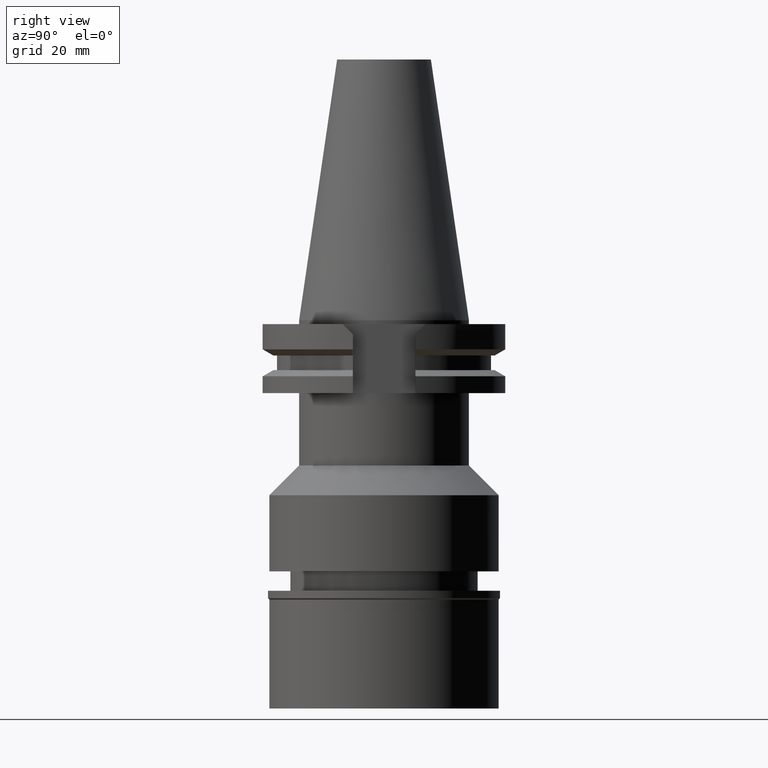
[diagram: clean part render]
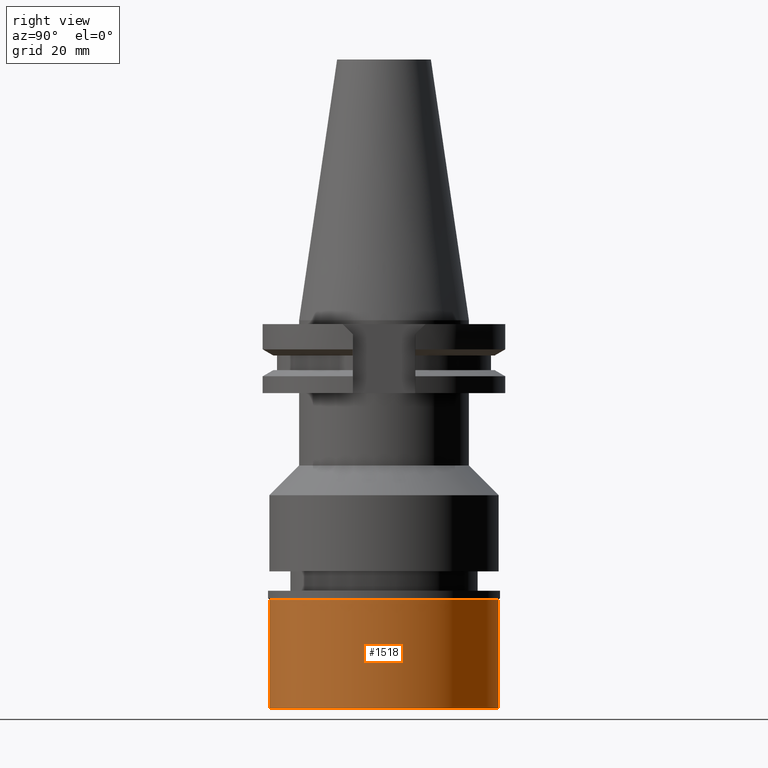
[diagram: same view with one face highlighted and labeled with its STEP entity id]
A machine part, right view. The second image highlights one B-rep face of the part: STEP entity #1518.
In plain terms, the highlighted cylindrical surface (partial cylindrical patch) has radius 30 mm, axis along (0, 0, -1).
Its self-contained STEP definition (entity closure, byte-faithful):
#124 = LINE ( 'NONE', #1585, #1749 ) ;
#186 = LINE ( 'NONE', #2381, #3070 ) ;
#250 = CARTESIAN_POINT ( 'NONE',  ( 0.0000000000000000000, 30.00000000000000000, -30.80000000000000071 ) ) ;
#340 = CARTESIAN_POINT ( 'NONE',  ( 0.0000000000000000000, 0.0000000000000000000, -30.80000000000000071 ) ) ;
#380 = EDGE_LOOP ( 'NONE', ( #2921, #2206, #2683, #2079 ) ) ;
#469 = DIRECTION ( 'NONE',  ( 0.0000000000000000000, 0.0000000000000000000, -1.000000000000000000 ) ) ;
#576 = DIRECTION ( 'NONE',  ( 0.0000000000000000000, -1.000000000000000000, 0.0000000000000000000 ) ) ;
#610 = CARTESIAN_POINT ( 'NONE',  ( 0.0000000000000000000, -30.00000000000000000, -30.80000000000000071 ) ) ;
#649 = EDGE_CURVE ( 'NONE', #1550, #2421, #186, .T. ) ;
#768 = EDGE_CURVE ( 'NONE', #2421, #2187, #1321, .T. ) ;
#779 = DIRECTION ( 'NONE',  ( 0.0000000000000000000, 0.0000000000000000000, 1.000000000000000000 ) ) ;
#915 = DIRECTION ( 'NONE',  ( 0.0000000000000000000, -1.000000000000000000, 0.0000000000000000000 ) ) ;
#1127 = CARTESIAN_POINT ( 'NONE',  ( 0.0000000000000000000, 0.0000000000000000000, -2.299999999999999822 ) ) ;
#1155 = CYLINDRICAL_SURFACE ( 'NONE', #3029, 30.00000000000000000 ) ;
#1321 = CIRCLE ( 'NONE', #3128, 30.00000000000000000 ) ;
#1406 = EDGE_CURVE ( 'NONE', #2059, #1550, #2509, .T. ) ;
#1518 = ADVANCED_FACE ( 'NONE', ( #2346 ), #1155, .T. ) ;
#1550 = VERTEX_POINT ( 'NONE', #2799 ) ;
#1585 = CARTESIAN_POINT ( 'NONE',  ( 0.0000000000000000000, 30.00000000000000000, -2.299999999999999822 ) ) ;
#1749 = VECTOR ( 'NONE', #2598, 1000.000000000000000 ) ;
#1838 = DIRECTION ( 'NONE',  ( 0.0000000000000000000, 0.0000000000000000000, -1.000000000000000000 ) ) ;
#1839 = AXIS2_PLACEMENT_3D ( 'NONE', #1127, #1838, #2075 ) ;
#1860 = CARTESIAN_POINT ( 'NONE',  ( 0.0000000000000000000, 0.0000000000000000000, 0.0000000000000000000 ) ) ;
#2059 = VERTEX_POINT ( 'NONE', #2430 ) ;
#2075 = DIRECTION ( 'NONE',  ( 0.0000000000000000000, 1.000000000000000000, 0.0000000000000000000 ) ) ;
#2079 = ORIENTED_EDGE ( 'NONE', *, *, #2453, .F. ) ;
#2187 = VERTEX_POINT ( 'NONE', #250 ) ;
#2206 = ORIENTED_EDGE ( 'NONE', *, *, #649, .T. ) ;
#2346 = FACE_OUTER_BOUND ( 'NONE', #380, .T. ) ;
#2381 = CARTESIAN_POINT ( 'NONE',  ( 0.0000000000000000000, -30.00000000000000000, -2.299999999999999822 ) ) ;
#2421 = VERTEX_POINT ( 'NONE', #610 ) ;
#2430 = CARTESIAN_POINT ( 'NONE',  ( 0.0000000000000000000, 30.00000000000000000, -2.299999999999999822 ) ) ;
#2453 = EDGE_CURVE ( 'NONE', #2059, #2187, #124, .T. ) ;
#2509 = CIRCLE ( 'NONE', #1839, 30.00000000000000000 ) ;
#2598 = DIRECTION ( 'NONE',  ( 0.0000000000000000000, 0.0000000000000000000, -1.000000000000000000 ) ) ;
#2683 = ORIENTED_EDGE ( 'NONE', *, *, #768, .T. ) ;
#2799 = CARTESIAN_POINT ( 'NONE',  ( 0.0000000000000000000, -30.00000000000000000, -2.299999999999999822 ) ) ;
#2921 = ORIENTED_EDGE ( 'NONE', *, *, #1406, .T. ) ;
#3029 = AXIS2_PLACEMENT_3D ( 'NONE', #1860, #3115, #915 ) ;
#3070 = VECTOR ( 'NONE', #469, 1000.000000000000000 ) ;
#3115 = DIRECTION ( 'NONE',  ( 0.0000000000000000000, 0.0000000000000000000, -1.000000000000000000 ) ) ;
#3128 = AXIS2_PLACEMENT_3D ( 'NONE', #340, #779, #576 ) ;